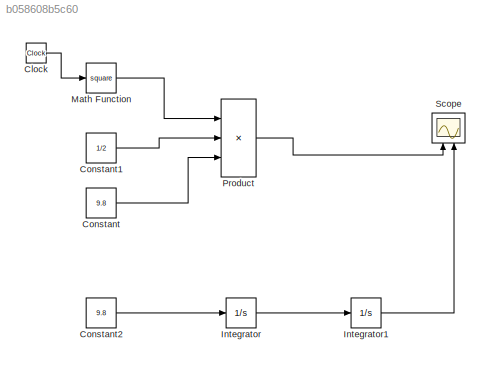
MODEL slx_b058608b5c60
KIND model
CONFIG AbsTol = auto
CONFIG EnableMultiTasking = off
CONFIG FixedStep = auto
CONFIG MaxStep = auto
CONFIG MinStep = auto
CONFIG RelTol = 1e-3
CONFIG SampleTimeConstraint = Unconstrained
CONFIG Solver = VariableStepAuto
CONFIG SolverName = VariableStepAuto
CONFIG StartTime = 0.0
CONFIG StopTime = 10.0
BLOCK [Clock] Clock
BLOCK [Constant] Constant
  Value = 9.8
BLOCK [Constant] Constant1
  Value = 1/2
BLOCK [Constant] Constant2
  Value = 9.8
BLOCK [Integrator] Integrator
  InitialCondition = -10
  Ports = [1, 1]
BLOCK [Integrator] Integrator1
  Ports = [1, 1]
BLOCK [Math] Math Function
  Operator = square
  Ports = [1, 1]
BLOCK [Product] Product
  InputSameDT = off
  Inputs = 3
  OutDataTypeStr = Inherit: Inherit via internal rule
  Ports = [3, 1]
  RndMeth = Floor
  SaturateOnIntegerOverflow = off
BLOCK [Scope] Scope
  Floating = off
  NumInputPorts = 2
  Ports = [2]
  ScopeSpecificationString = Simulink.scopes.TimeScopeBlockCfg('CurrentConfiguration', extmgr.ConfigurationSet(extmgr.Configuration('Core','General UI',true),extmgr.Configuration('Core','Source UI',true),extmgr.Configuration('Sources','WiredSimulink',true),extmgr.Configuration('Visuals','Time Domain',true,'SerializedDisplays',{struct('MinYLimReal','-61.25','MaxYLimReal','551.25','YLabelReal','','MinYLimMag','0.00000','MaxYLim...<+2043ch>
LINE Clock:1 -> Math Function:1
LINE Constant1:1 -> Product:2
LINE Constant2:1 -> Integrator:1
LINE Constant:1 -> Product:3
LINE Integrator1:1 -> Scope:2
LINE Integrator:1 -> Integrator1:1
LINE Math Function:1 -> Product:1
LINE Product:1 -> Scope:1
